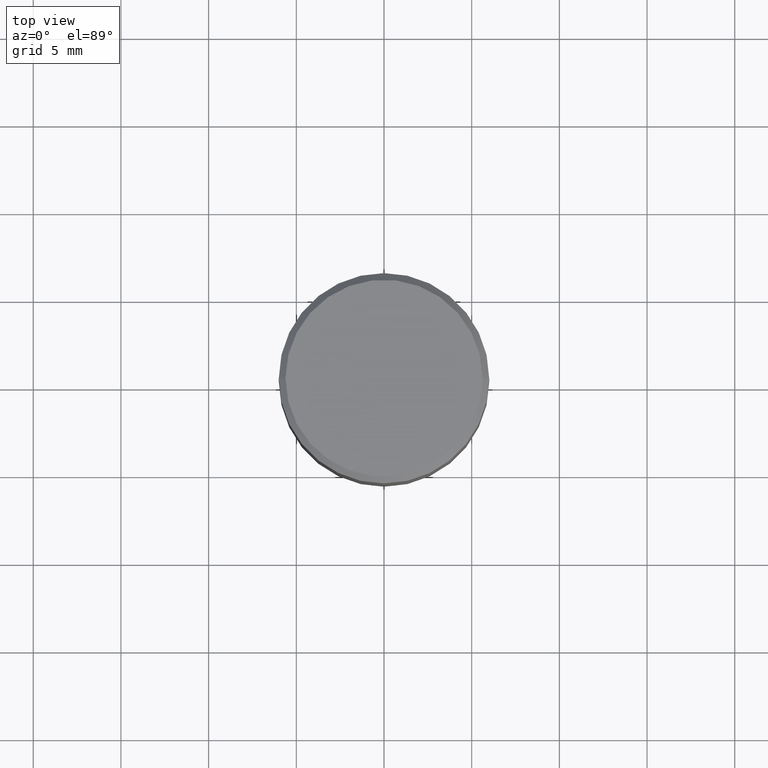
[diagram: clean part render]
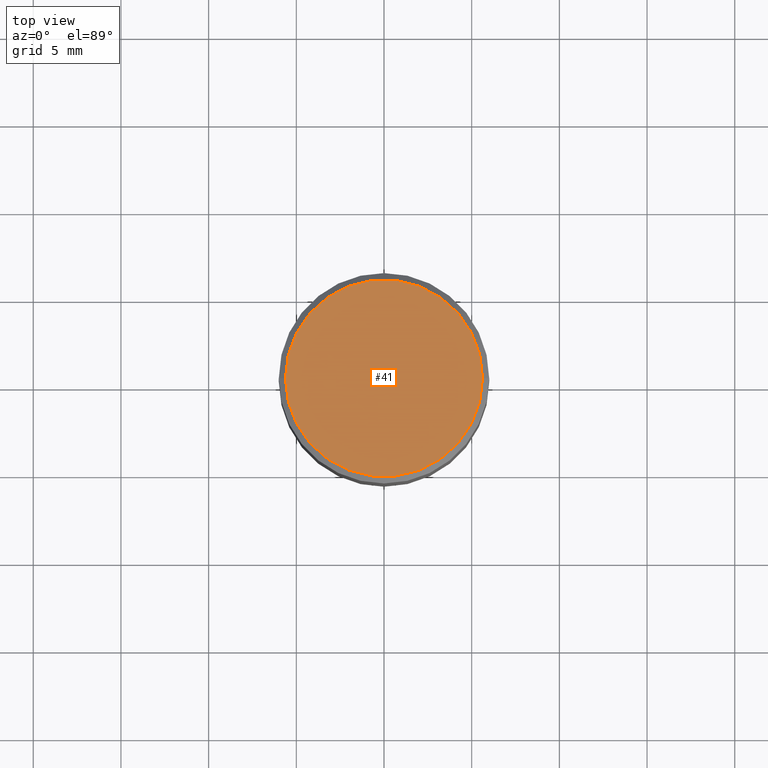
[diagram: same view with one face highlighted and labeled with its STEP entity id]
A machine part, top view. The second image highlights one B-rep face of the part: STEP entity #41.
In plain terms, the highlighted planar face has unit normal (0, -0, -1).
Its self-contained STEP definition (entity closure, byte-faithful):
#1 = CARTESIAN_POINT ( 'NONE',  ( 1.544631344304202170E-15, 0.2212000000000000077, -7.488084343291421542E-16 ) ) ;
#18 = EDGE_CURVE ( 'NONE', #411, #199, #380, .T. ) ;
#26 = ORIENTED_EDGE ( 'NONE', *, *, #18, .T. ) ;
#30 = DIRECTION ( 'NONE',  ( 1.000000000000000000, -6.982962677686267499E-15, 4.877828720335458505E-29 ) ) ;
#35 = AXIS2_PLACEMENT_3D ( 'NONE', #1, #255, #254 ) ;
#39 = FACE_OUTER_BOUND ( 'NONE', #232, .T. ) ;
#41 = ADVANCED_FACE ( 'NONE', ( #39 ), #325, .F. ) ;
#51 = CARTESIAN_POINT ( 'NONE',  ( -1.149724336312568861E-45, 1.641501643732376549E-31, 4.701447564592356200E-17 ) ) ;
#66 = EDGE_CURVE ( 'NONE', #199, #411, #418, .T. ) ;
#142 = CARTESIAN_POINT ( 'NONE',  ( -0.2212000000000000077, 1.570817454345525709E-15, 4.701447564591266586E-17 ) ) ;
#162 = AXIS2_PLACEMENT_3D ( 'NONE', #351, #211, #30 ) ;
#199 = VERTEX_POINT ( 'NONE', #142 ) ;
#211 = DIRECTION ( 'NONE',  ( -2.445468806185136597E-29, 3.491481338843145583E-15, 1.000000000000000000 ) ) ;
#232 = EDGE_LOOP ( 'NONE', ( #290, #26 ) ) ;
#250 = AXIS2_PLACEMENT_3D ( 'NONE', #51, #342, #439 ) ;
#254 = DIRECTION ( 'NONE',  ( -1.000000000000000000, 6.982962677686265922E-15, -4.876176775795935793E-29 ) ) ;
#255 = DIRECTION ( 'NONE',  ( 2.438088387897960049E-29, -3.491481338843145188E-15, -1.000000000000000000 ) ) ;
#290 = ORIENTED_EDGE ( 'NONE', *, *, #66, .T. ) ;
#325 = PLANE ( 'NONE',  #35 ) ;
#342 = DIRECTION ( 'NONE',  ( -2.445468806185136597E-29, 3.491481338843145583E-15, 1.000000000000000000 ) ) ;
#351 = CARTESIAN_POINT ( 'NONE',  ( -1.149724336312568861E-45, 1.641501643732376549E-31, 4.701447564592356200E-17 ) ) ;
#380 = CIRCLE ( 'NONE', #162, 0.2212000000000000077 ) ;
#411 = VERTEX_POINT ( 'NONE', #444 ) ;
#418 = CIRCLE ( 'NONE', #250, 0.2212000000000000077 ) ;
#439 = DIRECTION ( 'NONE',  ( 1.000000000000000000, -6.982962677686267499E-15, 4.877828720335458505E-29 ) ) ;
#444 = CARTESIAN_POINT ( 'NONE',  ( 0.2212000000000000077, -1.595182002131672613E-15, 4.701447564593453826E-17 ) ) ;